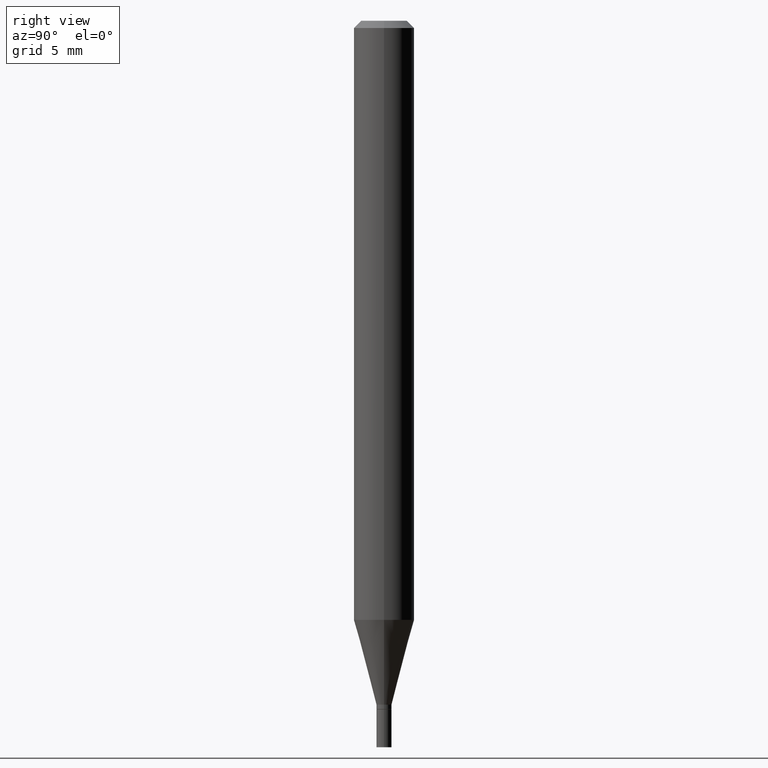
[diagram: clean part render]
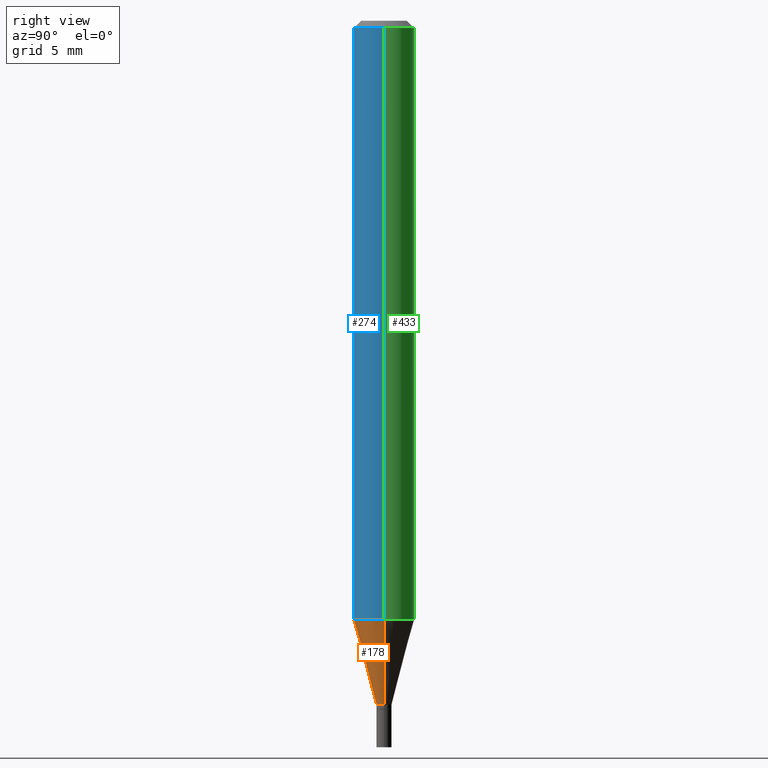
[diagram: same view with three faces highlighted in distinct colors, each labeled with its STEP entity id]
A machine part, right view with three faces highlighted in distinct colors.
Their STEP definitions:

[orange] entity #178 — the highlighted conical surface has half-angle 15 deg.
#28 = DIRECTION ( 'NONE',  ( -2.445468806185136597E-29, 3.491481338843145583E-15, 1.000000000000000000 ) ) ;
#29 = ORIENTED_EDGE ( 'NONE', *, *, #62, .T. ) ;
#34 = CONICAL_SURFACE ( 'NONE', #398, 0.01559999999999992816, 0.2617993877991502405 ) ;
#42 = DIRECTION ( 'NONE',  ( -0.2588190451025215166, 5.211531920934551042E-15, 0.9659258262890679791 ) ) ;
#62 = EDGE_CURVE ( 'NONE', #380, #218, #97, .T. ) ;
#75 = CARTESIAN_POINT ( 'NONE',  ( 0.06250000000000000000, -4.755281726115601490E-15, -1.236966817125020102 ) ) ;
#77 = CARTESIAN_POINT ( 'NONE',  ( -0.01559999999999992816, -4.819126983667946462E-15, -1.412000000000000144 ) ) ;
#91 = CARTESIAN_POINT ( 'NONE',  ( 0.01559999999999992816, -5.038905868218426694E-15, -1.412000000000000144 ) ) ;
#97 = LINE ( 'NONE', #336, #184 ) ;
#110 = CARTESIAN_POINT ( 'NONE',  ( 3.453001954333413314E-29, -4.929971650446521716E-15, -1.412000000000000144 ) ) ;
#111 = ORIENTED_EDGE ( 'NONE', *, *, #266, .T. ) ;
#114 = EDGE_CURVE ( 'NONE', #263, #218, #359, .T. ) ;
#115 = CARTESIAN_POINT ( 'NONE',  ( -0.01559999999999992816, -4.346942166289046833E-15, -1.412000000000000144 ) ) ;
#133 = EDGE_LOOP ( 'NONE', ( #271, #111, #29, #183 ) ) ;
#148 = AXIS2_PLACEMENT_3D ( 'NONE', #422, #312, #273 ) ;
#174 = CIRCLE ( 'NONE', #440, 0.01559999999999992816 ) ;
#178 = ADVANCED_FACE ( 'NONE', ( #356 ), #34, .T. ) ;
#182 = CARTESIAN_POINT ( 'NONE',  ( -0.06250000000000000000, -3.874757348910146415E-15, -1.236966817125020102 ) ) ;
#183 = ORIENTED_EDGE ( 'NONE', *, *, #114, .F. ) ;
#184 = VECTOR ( 'NONE', #307, 39.37007874015748143 ) ;
#210 = EDGE_CURVE ( 'NONE', #220, #263, #443, .T. ) ;
#213 = VECTOR ( 'NONE', #42, 39.37007874015748143 ) ;
#218 = VERTEX_POINT ( 'NONE', #75 ) ;
#220 = VERTEX_POINT ( 'NONE', #115 ) ;
#263 = VERTEX_POINT ( 'NONE', #182 ) ;
#266 = EDGE_CURVE ( 'NONE', #220, #380, #174, .T. ) ;
#271 = ORIENTED_EDGE ( 'NONE', *, *, #210, .F. ) ;
#273 = DIRECTION ( 'NONE',  ( 1.000000000000000000, -6.982962677686262766E-15, 0.000000000000000000 ) ) ;
#307 = DIRECTION ( 'NONE',  ( 0.2588190451025215166, 1.565188264969620784E-15, 0.9659258262890679791 ) ) ;
#312 = DIRECTION ( 'NONE',  ( -2.445468806185136597E-29, 3.491481338843145583E-15, 1.000000000000000000 ) ) ;
#319 = CARTESIAN_POINT ( 'NONE',  ( 3.453001954333413314E-29, -4.929971650446521716E-15, -1.412000000000000144 ) ) ;
#336 = CARTESIAN_POINT ( 'NONE',  ( 0.01559999999999992816, -5.038905868218426694E-15, -1.412000000000000144 ) ) ;
#356 = FACE_OUTER_BOUND ( 'NONE', #133, .T. ) ;
#359 = CIRCLE ( 'NONE', #148, 0.06250000000000000000 ) ;
#364 = DIRECTION ( 'NONE',  ( -2.445468806185136597E-29, 3.491481338843145583E-15, 1.000000000000000000 ) ) ;
#380 = VERTEX_POINT ( 'NONE', #91 ) ;
#398 = AXIS2_PLACEMENT_3D ( 'NONE', #319, #28, #463 ) ;
#408 = DIRECTION ( 'NONE',  ( 1.000000000000000000, -6.982962677686252511E-15, 0.000000000000000000 ) ) ;
#422 = CARTESIAN_POINT ( 'NONE',  ( 3.024963765565350895E-29, -4.318846558760209820E-15, -1.236966817125020102 ) ) ;
#440 = AXIS2_PLACEMENT_3D ( 'NONE', #110, #364, #408 ) ;
#443 = LINE ( 'NONE', #77, #213 ) ;
#463 = DIRECTION ( 'NONE',  ( 1.000000000000000000, -6.982962677686252511E-15, 0.000000000000000000 ) ) ;

[blue] entity #274 — the highlighted cylindrical surface (edge-blend (fillet) strip) has radius 1.5875 mm, axis along (-0, 0, 1).
#11 = DIRECTION ( 'NONE',  ( 1.000000000000000000, -6.982962677686267499E-15, 0.000000000000000000 ) ) ;
#19 = CARTESIAN_POINT ( 'NONE',  ( -0.06250000000000002776, -1.741520179571366031E-15, -0.01499999999999999944 ) ) ;
#39 = EDGE_CURVE ( 'NONE', #263, #94, #58, .T. ) ;
#50 = ORIENTED_EDGE ( 'NONE', *, *, #114, .T. ) ;
#58 = LINE ( 'NONE', #267, #316 ) ;
#75 = CARTESIAN_POINT ( 'NONE',  ( 0.06250000000000000000, -4.755281726115601490E-15, -1.236966817125020102 ) ) ;
#76 = CARTESIAN_POINT ( 'NONE',  ( 0.000000000000000000, 0.000000000000000000, 0.000000000000000000 ) ) ;
#79 = CIRCLE ( 'NONE', #363, 0.06250000000000001388 ) ;
#94 = VERTEX_POINT ( 'NONE', #19 ) ;
#99 = EDGE_CURVE ( 'NONE', #94, #121, #79, .T. ) ;
#106 = CARTESIAN_POINT ( 'NONE',  ( 0.06250000000000001388, -4.888073874380389458E-16, -0.01499999999999999944 ) ) ;
#114 = EDGE_CURVE ( 'NONE', #263, #218, #359, .T. ) ;
#121 = VERTEX_POINT ( 'NONE', #106 ) ;
#148 = AXIS2_PLACEMENT_3D ( 'NONE', #422, #312, #273 ) ;
#182 = CARTESIAN_POINT ( 'NONE',  ( -0.06250000000000000000, -3.874757348910146415E-15, -1.236966817125020102 ) ) ;
#218 = VERTEX_POINT ( 'NONE', #75 ) ;
#222 = ORIENTED_EDGE ( 'NONE', *, *, #39, .F. ) ;
#229 = CARTESIAN_POINT ( 'NONE',  ( 0.06250000000000001388, -4.364351673553917187E-16, 3.047610484872460221E-30 ) ) ;
#263 = VERTEX_POINT ( 'NONE', #182 ) ;
#265 = LINE ( 'NONE', #229, #285 ) ;
#267 = CARTESIAN_POINT ( 'NONE',  ( -0.06250000000000001388, 4.440892098500627148E-16, -3.074334431409316814E-30 ) ) ;
#270 = CARTESIAN_POINT ( 'NONE',  ( 3.668203209277705088E-31, -5.237222008264718399E-17, -0.01499999999999999944 ) ) ;
#273 = DIRECTION ( 'NONE',  ( 1.000000000000000000, -6.982962677686262766E-15, 0.000000000000000000 ) ) ;
#274 = ADVANCED_FACE ( 'NONE', ( #410 ), #321, .T. ) ;
#285 = VECTOR ( 'NONE', #414, 39.37007874015748143 ) ;
#286 = DIRECTION ( 'NONE',  ( 1.000000000000000000, -6.982962677686265922E-15, 4.876176775795935232E-29 ) ) ;
#304 = ORIENTED_EDGE ( 'NONE', *, *, #358, .T. ) ;
#312 = DIRECTION ( 'NONE',  ( -2.445468806185136597E-29, 3.491481338843145583E-15, 1.000000000000000000 ) ) ;
#316 = VECTOR ( 'NONE', #457, 39.37007874015748143 ) ;
#321 = CYLINDRICAL_SURFACE ( 'NONE', #339, 0.06250000000000001388 ) ;
#339 = AXIS2_PLACEMENT_3D ( 'NONE', #76, #371, #286 ) ;
#351 = DIRECTION ( 'NONE',  ( -2.445468806185136597E-29, 3.491481338843145583E-15, 1.000000000000000000 ) ) ;
#358 = EDGE_CURVE ( 'NONE', #218, #121, #265, .T. ) ;
#359 = CIRCLE ( 'NONE', #148, 0.06250000000000000000 ) ;
#363 = AXIS2_PLACEMENT_3D ( 'NONE', #270, #351, #11 ) ;
#371 = DIRECTION ( 'NONE',  ( -2.445468806185136597E-29, 3.491481338843145583E-15, 1.000000000000000000 ) ) ;
#392 = ORIENTED_EDGE ( 'NONE', *, *, #99, .F. ) ;
#410 = FACE_OUTER_BOUND ( 'NONE', #462, .T. ) ;
#414 = DIRECTION ( 'NONE',  ( -2.445468806185136877E-29, 3.491481338843145188E-15, 1.000000000000000000 ) ) ;
#422 = CARTESIAN_POINT ( 'NONE',  ( 3.024963765565350895E-29, -4.318846558760209820E-15, -1.236966817125020102 ) ) ;
#457 = DIRECTION ( 'NONE',  ( -2.445468806185136877E-29, 3.491481338843145188E-15, 1.000000000000000000 ) ) ;
#462 = EDGE_LOOP ( 'NONE', ( #222, #50, #304, #392 ) ) ;

[green] entity #433 — the highlighted cylindrical surface (edge-blend (fillet) strip) has radius 1.5875 mm, axis along (-0, 0, 1).
#1 = AXIS2_PLACEMENT_3D ( 'NONE', #374, #18, #332 ) ;
#6 = AXIS2_PLACEMENT_3D ( 'NONE', #185, #246, #406 ) ;
#15 = CARTESIAN_POINT ( 'NONE',  ( 3.668203209277705088E-31, -5.237222008264718399E-17, -0.01499999999999999944 ) ) ;
#18 = DIRECTION ( 'NONE',  ( -2.445468806185136597E-29, 3.491481338843145583E-15, 1.000000000000000000 ) ) ;
#19 = CARTESIAN_POINT ( 'NONE',  ( -0.06250000000000002776, -1.741520179571366031E-15, -0.01499999999999999944 ) ) ;
#37 = AXIS2_PLACEMENT_3D ( 'NONE', #15, #159, #262 ) ;
#39 = EDGE_CURVE ( 'NONE', #263, #94, #58, .T. ) ;
#58 = LINE ( 'NONE', #267, #316 ) ;
#63 = EDGE_CURVE ( 'NONE', #121, #94, #399, .T. ) ;
#75 = CARTESIAN_POINT ( 'NONE',  ( 0.06250000000000000000, -4.755281726115601490E-15, -1.236966817125020102 ) ) ;
#94 = VERTEX_POINT ( 'NONE', #19 ) ;
#106 = CARTESIAN_POINT ( 'NONE',  ( 0.06250000000000001388, -4.888073874380389458E-16, -0.01499999999999999944 ) ) ;
#121 = VERTEX_POINT ( 'NONE', #106 ) ;
#159 = DIRECTION ( 'NONE',  ( -2.445468806185136597E-29, 3.491481338843145583E-15, 1.000000000000000000 ) ) ;
#182 = CARTESIAN_POINT ( 'NONE',  ( -0.06250000000000000000, -3.874757348910146415E-15, -1.236966817125020102 ) ) ;
#185 = CARTESIAN_POINT ( 'NONE',  ( 3.024963765565350895E-29, -4.318846558760209820E-15, -1.236966817125020102 ) ) ;
#218 = VERTEX_POINT ( 'NONE', #75 ) ;
#229 = CARTESIAN_POINT ( 'NONE',  ( 0.06250000000000001388, -4.364351673553917187E-16, 3.047610484872460221E-30 ) ) ;
#236 = ORIENTED_EDGE ( 'NONE', *, *, #358, .F. ) ;
#241 = CIRCLE ( 'NONE', #6, 0.06250000000000000000 ) ;
#245 = EDGE_LOOP ( 'NONE', ( #308, #275, #411, #236 ) ) ;
#246 = DIRECTION ( 'NONE',  ( -2.445468806185136597E-29, 3.491481338843145583E-15, 1.000000000000000000 ) ) ;
#262 = DIRECTION ( 'NONE',  ( 1.000000000000000000, -6.982962677686267499E-15, 0.000000000000000000 ) ) ;
#263 = VERTEX_POINT ( 'NONE', #182 ) ;
#265 = LINE ( 'NONE', #229, #285 ) ;
#267 = CARTESIAN_POINT ( 'NONE',  ( -0.06250000000000001388, 4.440892098500627148E-16, -3.074334431409316814E-30 ) ) ;
#275 = ORIENTED_EDGE ( 'NONE', *, *, #39, .T. ) ;
#285 = VECTOR ( 'NONE', #414, 39.37007874015748143 ) ;
#298 = CYLINDRICAL_SURFACE ( 'NONE', #1, 0.06250000000000001388 ) ;
#300 = EDGE_CURVE ( 'NONE', #218, #263, #241, .T. ) ;
#308 = ORIENTED_EDGE ( 'NONE', *, *, #300, .T. ) ;
#316 = VECTOR ( 'NONE', #457, 39.37007874015748143 ) ;
#332 = DIRECTION ( 'NONE',  ( 1.000000000000000000, -6.982962677686265922E-15, 4.876176775795935232E-29 ) ) ;
#345 = FACE_OUTER_BOUND ( 'NONE', #245, .T. ) ;
#358 = EDGE_CURVE ( 'NONE', #218, #121, #265, .T. ) ;
#374 = CARTESIAN_POINT ( 'NONE',  ( 0.000000000000000000, 0.000000000000000000, 0.000000000000000000 ) ) ;
#399 = CIRCLE ( 'NONE', #37, 0.06250000000000001388 ) ;
#406 = DIRECTION ( 'NONE',  ( 1.000000000000000000, -6.982962677686262766E-15, 0.000000000000000000 ) ) ;
#411 = ORIENTED_EDGE ( 'NONE', *, *, #63, .F. ) ;
#414 = DIRECTION ( 'NONE',  ( -2.445468806185136877E-29, 3.491481338843145188E-15, 1.000000000000000000 ) ) ;
#433 = ADVANCED_FACE ( 'NONE', ( #345 ), #298, .T. ) ;
#457 = DIRECTION ( 'NONE',  ( -2.445468806185136877E-29, 3.491481338843145188E-15, 1.000000000000000000 ) ) ;